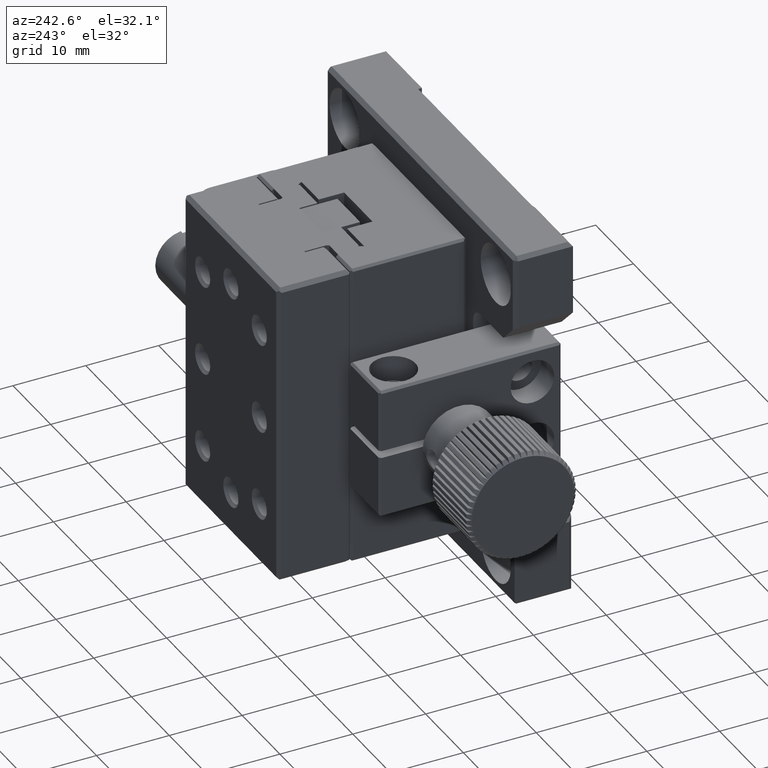
[diagram: clean part render]
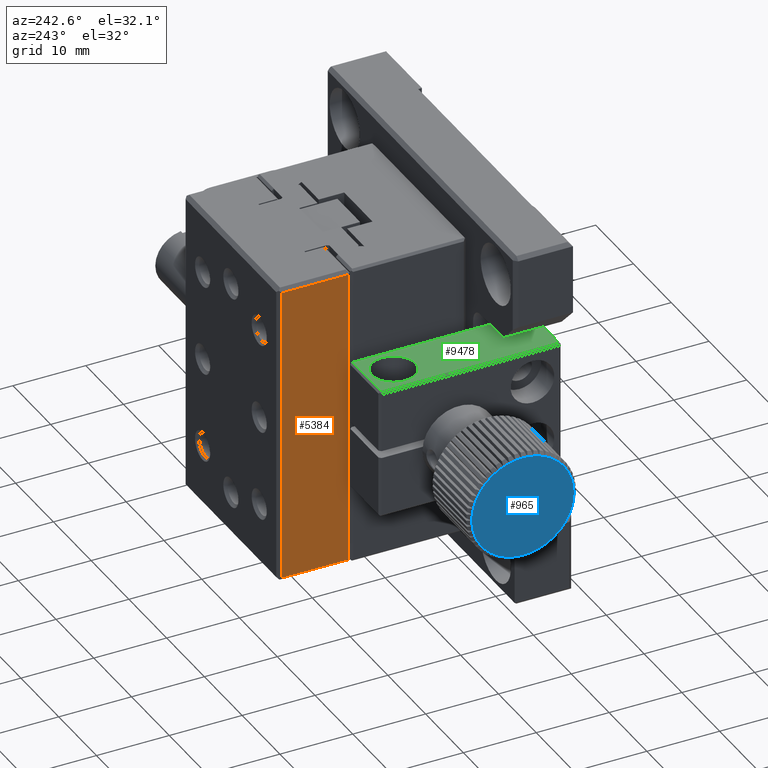
[diagram: same view with three faces highlighted in distinct colors, each labeled with its STEP entity id]
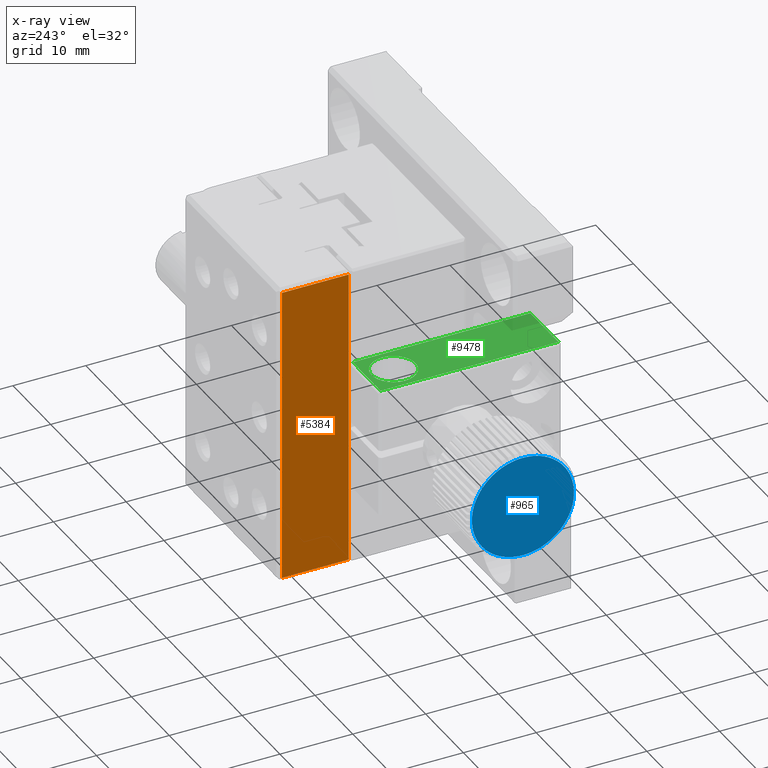
[diagram: x-ray of the same camera — body ghosted, the three highlighted faces saturated]
A machine part, auxiliary view with three faces highlighted in distinct colors.
The next image is the same camera in x-ray (body ghosted, the three faces saturated) — at least one of them is partly hidden behind the body in this view.
Their STEP definitions:

[orange] entity #5384 — the highlighted planar face has unit normal (1, 0, 0).
#1432 = VERTEX_POINT ( 'NONE', #9050 ) ;
#2228 = DIRECTION ( 'NONE',  ( 1.000000000000000000, 0.000000000000000000, 0.000000000000000000 ) ) ;
#3030 = CARTESIAN_POINT ( 'NONE',  ( -12.50000000000000000, 25.50000000000001421, -20.50000000000000000 ) ) ;
#3500 = VERTEX_POINT ( 'NONE', #12371 ) ;
#3543 = ORIENTED_EDGE ( 'NONE', *, *, #6246, .F. ) ;
#4052 = LINE ( 'NONE', #12605, #4885 ) ;
#4685 = CARTESIAN_POINT ( 'NONE',  ( -12.50000000000000000, 25.50000000000001421, 21.00000000000000000 ) ) ;
#4821 = VERTEX_POINT ( 'NONE', #10945 ) ;
#4885 = VECTOR ( 'NONE', #11445, 1000.000000000000000 ) ;
#5384 = ADVANCED_FACE ( 'NONE', ( #5832 ), #13471, .F. ) ;
#5755 = LINE ( 'NONE', #10522, #12150 ) ;
#5832 = FACE_OUTER_BOUND ( 'NONE', #7867, .T. ) ;
#6246 = EDGE_CURVE ( 'NONE', #1432, #3500, #4052, .T. ) ;
#6499 = VERTEX_POINT ( 'NONE', #16099 ) ;
#6830 = DIRECTION ( 'NONE',  ( 0.000000000000000000, -0.000000000000000000, -1.000000000000000000 ) ) ;
#7867 = EDGE_LOOP ( 'NONE', ( #3543, #10748, #9605, #13382 ) ) ;
#8011 = DIRECTION ( 'NONE',  ( -0.000000000000000000, 1.000000000000000000, 0.000000000000000000 ) ) ;
#8059 = CARTESIAN_POINT ( 'NONE',  ( -12.50000000000000000, 25.50000000000001421, 21.00000000000000000 ) ) ;
#8121 = DIRECTION ( 'NONE',  ( 0.000000000000000000, 0.000000000000000000, -1.000000000000000000 ) ) ;
#9050 = CARTESIAN_POINT ( 'NONE',  ( -12.50000000000000000, 25.50000000000001421, 20.50000000000000000 ) ) ;
#9221 = LINE ( 'NONE', #8059, #11644 ) ;
#9605 = ORIENTED_EDGE ( 'NONE', *, *, #13983, .F. ) ;
#10476 = AXIS2_PLACEMENT_3D ( 'NONE', #4685, #2228, #10833 ) ;
#10522 = CARTESIAN_POINT ( 'NONE',  ( -12.50000000000000000, 16.30000000000002913, 21.00000000000000000 ) ) ;
#10748 = ORIENTED_EDGE ( 'NONE', *, *, #15793, .T. ) ;
#10833 = DIRECTION ( 'NONE',  ( 0.000000000000000000, 0.000000000000000000, -1.000000000000000000 ) ) ;
#10945 = CARTESIAN_POINT ( 'NONE',  ( -12.50000000000000000, 25.50000000000001421, -20.49999999999999645 ) ) ;
#11445 = DIRECTION ( 'NONE',  ( 0.000000000000000000, -1.000000000000000000, -0.000000000000000000 ) ) ;
#11644 = VECTOR ( 'NONE', #6830, 1000.000000000000000 ) ;
#12150 = VECTOR ( 'NONE', #8121, 1000.000000000000000 ) ;
#12371 = CARTESIAN_POINT ( 'NONE',  ( -12.50000000000000000, 16.30000000000003268, 20.49999999999999645 ) ) ;
#12605 = CARTESIAN_POINT ( 'NONE',  ( -12.50000000000000000, 25.50000000000001421, 20.50000000000000000 ) ) ;
#13382 = ORIENTED_EDGE ( 'NONE', *, *, #13449, .F. ) ;
#13449 = EDGE_CURVE ( 'NONE', #3500, #6499, #5755, .T. ) ;
#13471 = PLANE ( 'NONE',  #10476 ) ;
#13983 = EDGE_CURVE ( 'NONE', #6499, #4821, #15517, .T. ) ;
#14532 = VECTOR ( 'NONE', #8011, 1000.000000000000000 ) ;
#15517 = LINE ( 'NONE', #3030, #14532 ) ;
#15793 = EDGE_CURVE ( 'NONE', #1432, #4821, #9221, .T. ) ;
#16099 = CARTESIAN_POINT ( 'NONE',  ( -12.50000000000000000, 16.30000000000002913, -20.50000000000000355 ) ) ;

[blue] entity #965 — the highlighted conical surface has half-angle 89.998 deg.
#70 = CARTESIAN_POINT ( 'NONE',  ( -40.50134648184533148, 3.890311651621880973, -6.317980218166069584 ) ) ;
#87 = CARTESIAN_POINT ( 'NONE',  ( -40.50515665095744566, 1.337438180723560910, -4.246522521889152912 ) ) ;
#170 = EDGE_CURVE ( 'NONE', #5962, #2704, #12774, .T. ) ;
#173 = DIRECTION ( 'NONE',  ( 0.001492500475196587061, 0.9999988862205454465, 0.000000000000000000 ) ) ;
#214 = AXIS2_PLACEMENT_3D ( 'NONE', #4521, #9519, #12994 ) ;
#230 = AXIS2_PLACEMENT_3D ( 'NONE', #12860, #14176, #6765 ) ;
#369 = DIRECTION ( 'NONE',  ( -0.001492500475197751711, -0.9999988862205454465, 0.000000000000000000 ) ) ;
#371 = CARTESIAN_POINT ( 'NONE',  ( -40.48756217962660031, 13.12601180389941646, 3.195593069822951993 ) ) ;
#439 = ORIENTED_EDGE ( 'NONE', *, *, #11298, .F. ) ;
#572 = EDGE_CURVE ( 'NONE', #11474, #9454, #13042, .T. ) ;
#617 = VERTEX_POINT ( 'NONE', #9063 ) ;
#723 = AXIS2_PLACEMENT_3D ( 'NONE', #15807, #8315, #13346 ) ;
#734 = ORIENTED_EDGE ( 'NONE', *, *, #15590, .F. ) ;
#743 = AXIS2_PLACEMENT_3D ( 'NONE', #11256, #7542, #5165 ) ;
#746 = CIRCLE ( 'NONE', #5212, 6.998222645712131929 ) ;
#781 = VERTEX_POINT ( 'NONE', #10713 ) ;
#807 = CARTESIAN_POINT ( 'NONE',  ( -40.49685451504885236, 6.900000337192977895, 0.000000000000000000 ) ) ;
#810 = CARTESIAN_POINT ( 'NONE',  ( -40.49685451504885236, 6.900000337192977895, 0.000000000000000000 ) ) ;
#823 = ORIENTED_EDGE ( 'NONE', *, *, #12291, .F. ) ;
#859 = CARTESIAN_POINT ( 'NONE',  ( -40.49900593095340184, 5.458517708482015784, 6.848156204519013635 ) ) ;
#871 = ORIENTED_EDGE ( 'NONE', *, *, #13286, .F. ) ;
#876 = CIRCLE ( 'NONE', #12936, 6.998222645712131929 ) ;
#912 = CARTESIAN_POINT ( 'NONE',  ( -40.49685451504885236, 6.900000337192977895, 0.000000000000000000 ) ) ;
#926 = DIRECTION ( 'NONE',  ( 0.9999988862205456686, -0.001492500475197029632, 0.000000000000000000 ) ) ;
#959 = CARTESIAN_POINT ( 'NONE',  ( -40.49531236874267393, 7.933262714129113213, -6.921523436437328591 ) ) ;
#965 = ADVANCED_FACE ( 'NONE', ( #15304 ), #1521, .F. ) ;
#979 = CIRCLE ( 'NONE', #723, 6.998222645712131929 ) ;
#989 = AXIS2_PLACEMENT_3D ( 'NONE', #8837, #15260, #2625 ) ;
#1003 = CIRCLE ( 'NONE', #8856, 6.998222645712131929 ) ;
#1064 = VERTEX_POINT ( 'NONE', #2469 ) ;
#1071 = EDGE_CURVE ( 'NONE', #6781, #5962, #9886, .T. ) ;
#1075 = CARTESIAN_POINT ( 'NONE',  ( -40.49685451504885236, 6.900000337192977895, 0.000000000000000000 ) ) ;
#1151 = CIRCLE ( 'NONE', #7721, 6.998222645712131929 ) ;
#1153 = EDGE_CURVE ( 'NONE', #15082, #6781, #11209, .T. ) ;
#1225 = CIRCLE ( 'NONE', #10391, 6.998222645712131929 ) ;
#1253 = EDGE_CURVE ( 'NONE', #13409, #16069, #13596, .T. ) ;
#1255 = CIRCLE ( 'NONE', #8840, 6.998222645712131929 ) ;
#1306 = CIRCLE ( 'NONE', #8619, 6.998222645712131929 ) ;
#1347 = VERTEX_POINT ( 'NONE', #15548 ) ;
#1452 = EDGE_CURVE ( 'NONE', #4349, #4376, #5978, .T. ) ;
#1479 = CARTESIAN_POINT ( 'NONE',  ( -40.49685451504885236, 6.900000337192977895, 0.000000000000000000 ) ) ;
#1485 = DIRECTION ( 'NONE',  ( 0.001492500475196587061, 0.9999988862205454465, 0.000000000000000000 ) ) ;
#1488 = ORIENTED_EDGE ( 'NONE', *, *, #8544, .F. ) ;
#1495 = CARTESIAN_POINT ( 'NONE',  ( -40.50515665095744566, 1.337438180723502068, 4.246522521889074753 ) ) ;
#1508 = CIRCLE ( 'NONE', #989, 6.998222645712131929 ) ;
#1519 = VERTEX_POINT ( 'NONE', #5835 ) ;
#1521 = CONICAL_SURFACE ( 'NONE', #10684, 6.998222645725268087, 1.570764043616361461 ) ;
#1527 = AXIS2_PLACEMENT_3D ( 'NONE', #11946, #4405, #10635 ) ;
#1534 = AXIS2_PLACEMENT_3D ( 'NONE', #16214, #2589, #8649 ) ;
#1539 = AXIS2_PLACEMENT_3D ( 'NONE', #9064, #7837, #3918 ) ;
#1554 = EDGE_CURVE ( 'NONE', #6683, #3261, #16212, .T. ) ;
#1600 = DIRECTION ( 'NONE',  ( 0.001492500475196587061, 0.9999988862205454465, 0.000000000000000000 ) ) ;
#1630 = EDGE_CURVE ( 'NONE', #15926, #12399, #10183, .T. ) ;
#1666 = DIRECTION ( 'NONE',  ( 0.9999988862205456686, -0.001492500475197029632, 0.000000000000000000 ) ) ;
#1669 = DIRECTION ( 'NONE',  ( 0.001492500475196587061, 0.9999988862205454465, 0.000000000000000000 ) ) ;
#1671 = CIRCLE ( 'NONE', #4789, 6.998222645712131929 ) ;
#1676 = CARTESIAN_POINT ( 'NONE',  ( -40.48670188090792976, 13.70242553025174992, 1.643784844746260854 ) ) ;
#1765 = CARTESIAN_POINT ( 'NONE',  ( -40.50728102171374445, -0.08592377159287803434, 0.4145791036719497780 ) ) ;
#1768 = CIRCLE ( 'NONE', #2548, 6.998222645712131929 ) ;
#1817 = AXIS2_PLACEMENT_3D ( 'NONE', #14032, #2787, #3942 ) ;
#1833 = CARTESIAN_POINT ( 'NONE',  ( -40.48894242327828863, 12.20122676206636037, -4.568594531142605497 ) ) ;
#1883 = CARTESIAN_POINT ( 'NONE',  ( -40.49685451504885236, 6.900000337192977895, 0.000000000000000000 ) ) ;
#1957 = CARTESIAN_POINT ( 'NONE',  ( -40.49685451504885236, 6.900000337192977895, 0.000000000000000000 ) ) ;
#1992 = ORIENTED_EDGE ( 'NONE', *, *, #11531, .F. ) ;
#2147 = EDGE_CURVE ( 'NONE', #8362, #6683, #8881, .T. ) ;
#2158 = CARTESIAN_POINT ( 'NONE',  ( -40.49685451504885236, 6.900000337192977895, 0.000000000000000000 ) ) ;
#2160 = ORIENTED_EDGE ( 'NONE', *, *, #3355, .F. ) ;
#2171 = DIRECTION ( 'NONE',  ( 0.9999988862205456686, -0.001492500475197029632, 0.000000000000000000 ) ) ;
#2174 = EDGE_CURVE ( 'NONE', #9454, #16172, #5218, .T. ) ;
#2250 = DIRECTION ( 'NONE',  ( 0.001492500475196587061, 0.9999988862205454465, 0.000000000000000000 ) ) ;
#2387 = CARTESIAN_POINT ( 'NONE',  ( -40.50684398046652035, 0.2069007652927539742, -2.043878306105291198 ) ) ;
#2436 = ORIENTED_EDGE ( 'NONE', *, *, #2909, .F. ) ;
#2466 = CARTESIAN_POINT ( 'NONE',  ( -40.49654499936625029, 7.107380732052419603, -6.995149281822806486 ) ) ;
#2469 = CARTESIAN_POINT ( 'NONE',  ( -40.48640966442459899, 13.89821518842851056, 0.000000000000000000 ) ) ;
#2485 = DIRECTION ( 'NONE',  ( 0.001492500475196587061, 0.9999988862205454465, 0.000000000000000000 ) ) ;
#2493 = CARTESIAN_POINT ( 'NONE',  ( -40.48670188090792976, 13.70242553025177301, -1.643784844746166929 ) ) ;
#2504 = CARTESIAN_POINT ( 'NONE',  ( -40.49685451504885236, 6.900000337192977895, 0.000000000000000000 ) ) ;
#2548 = AXIS2_PLACEMENT_3D ( 'NONE', #3063, #4369, #11844 ) ;
#2549 = CIRCLE ( 'NONE', #12242, 6.998222645712131929 ) ;
#2550 = VERTEX_POINT ( 'NONE', #7824 ) ;
#2572 = VERTEX_POINT ( 'NONE', #9139 ) ;
#2577 = CIRCLE ( 'NONE', #13309, 6.998222645712131929 ) ;
#2586 = CARTESIAN_POINT ( 'NONE',  ( -40.49685451504885236, 6.900000337192977895, 0.000000000000000000 ) ) ;
#2588 = VERTEX_POINT ( 'NONE', #5447 ) ;
#2589 = DIRECTION ( 'NONE',  ( 0.9999988862205456686, -0.001492500475197029632, 0.000000000000000000 ) ) ;
#2608 = CIRCLE ( 'NONE', #4683, 6.998222645712131929 ) ;
#2625 = DIRECTION ( 'NONE',  ( 0.001492500475196587061, 0.9999988862205454465, 0.000000000000000000 ) ) ;
#2655 = CARTESIAN_POINT ( 'NONE',  ( -40.50019968583191599, 4.658683089487007045, 6.629600742422300463 ) ) ;
#2657 = VERTEX_POINT ( 'NONE', #8137 ) ;
#2681 = CARTESIAN_POINT ( 'NONE',  ( -40.48980441842409306, 11.62367640274931979, -5.163521562149798960 ) ) ;
#2704 = VERTEX_POINT ( 'NONE', #2655 ) ;
#2787 = DIRECTION ( 'NONE',  ( 0.9999988862205456686, -0.001492500475197029632, 0.000000000000000000 ) ) ;
#2805 = AXIS2_PLACEMENT_3D ( 'NONE', #810, #10808, #10573 ) ;
#2834 = AXIS2_PLACEMENT_3D ( 'NONE', #6151, #8696, #15109 ) ;
#2881 = CIRCLE ( 'NONE', #12044, 6.998222645712131929 ) ;
#2903 = CARTESIAN_POINT ( 'NONE',  ( -40.49685451504885236, 6.900000337192977895, 0.000000000000000000 ) ) ;
#2909 = EDGE_CURVE ( 'NONE', #10744, #781, #2881, .T. ) ;
#2928 = VERTEX_POINT ( 'NONE', #1495 ) ;
#2985 = CARTESIAN_POINT ( 'NONE',  ( -40.49685451504886657, 6.900000337192977007, 1.566849511306091648E-37 ) ) ;
#3033 = DIRECTION ( 'NONE',  ( 0.9999988862205456686, -0.001492500475197029632, 0.000000000000000000 ) ) ;
#3063 = CARTESIAN_POINT ( 'NONE',  ( -40.49685451504885236, 6.900000337192977895, 0.000000000000000000 ) ) ;
#3115 = CARTESIAN_POINT ( 'NONE',  ( -40.49685451504885236, 6.900000337192977895, 0.000000000000000000 ) ) ;
#3193 = DIRECTION ( 'NONE',  ( 0.001492500475196587061, 0.9999988862205454465, 0.000000000000000000 ) ) ;
#3261 = VERTEX_POINT ( 'NONE', #6477 ) ;
#3283 = CARTESIAN_POINT ( 'NONE',  ( -40.49685451504885236, 6.900000337192977895, 0.000000000000000000 ) ) ;
#3306 = ORIENTED_EDGE ( 'NONE', *, *, #9947, .F. ) ;
#3324 = AXIS2_PLACEMENT_3D ( 'NONE', #3404, #2171, #2250 ) ;
#3327 = ORIENTED_EDGE ( 'NONE', *, *, #2174, .F. ) ;
#3355 = EDGE_CURVE ( 'NONE', #15947, #2928, #9857, .T. ) ;
#3404 = CARTESIAN_POINT ( 'NONE',  ( -40.49685451504885236, 6.900000337192977895, 0.000000000000000000 ) ) ;
#3417 = VERTEX_POINT ( 'NONE', #14512 ) ;
#3479 = ORIENTED_EDGE ( 'NONE', *, *, #6929, .F. ) ;
#3509 = AXIS2_PLACEMENT_3D ( 'NONE', #2504, #9973, #15243 ) ;
#3513 = VERTEX_POINT ( 'NONE', #11133 ) ;
#3623 = CIRCLE ( 'NONE', #1539, 6.998222645712131929 ) ;
#3628 = CARTESIAN_POINT ( 'NONE',  ( -40.49685451504885236, 6.900000337192977895, 0.000000000000000000 ) ) ;
#3645 = ORIENTED_EDGE ( 'NONE', *, *, #15218, .F. ) ;
#3715 = DIRECTION ( 'NONE',  ( 0.9999988862205456686, -0.001492500475197029632, 0.000000000000000000 ) ) ;
#3836 = EDGE_CURVE ( 'NONE', #11424, #6620, #8581, .T. ) ;
#3860 = CIRCLE ( 'NONE', #4896, 6.998222645712131929 ) ;
#3876 = AXIS2_PLACEMENT_3D ( 'NONE', #1075, #14608, #13708 ) ;
#3909 = EDGE_CURVE ( 'NONE', #6620, #15082, #10421, .T. ) ;
#3918 = DIRECTION ( 'NONE',  ( 0.001492500475196587061, 0.9999988862205454465, 0.000000000000000000 ) ) ;
#3930 = CIRCLE ( 'NONE', #9384, 6.998222645712131929 ) ;
#3942 = DIRECTION ( 'NONE',  ( 0.001492500475196587061, 0.9999988862205454465, 0.000000000000000000 ) ) ;
#4031 = CIRCLE ( 'NONE', #6113, 6.998222645712131929 ) ;
#4092 = DIRECTION ( 'NONE',  ( 0.001492500475196587061, 0.9999988862205454465, 0.000000000000000000 ) ) ;
#4094 = DIRECTION ( 'NONE',  ( 0.001492500475196587061, 0.9999988862205454465, 0.000000000000000000 ) ) ;
#4111 = AXIS2_PLACEMENT_3D ( 'NONE', #12670, #13821, #7398 ) ;
#4114 = CIRCLE ( 'NONE', #7243, 6.998222645712131929 ) ;
#4185 = DIRECTION ( 'NONE',  ( 0.9999988862205456686, -0.001492500475197029632, 0.000000000000000000 ) ) ;
#4212 = VERTEX_POINT ( 'NONE', #1833 ) ;
#4265 = CARTESIAN_POINT ( 'NONE',  ( -40.49654499936625029, 7.107380732052322792, 6.995149281822808263 ) ) ;
#4349 = VERTEX_POINT ( 'NONE', #6323 ) ;
#4369 = DIRECTION ( 'NONE',  ( 0.9999988862205456686, -0.001492500475197029632, 0.000000000000000000 ) ) ;
#4376 = VERTEX_POINT ( 'NONE', #2466 ) ;
#4405 = DIRECTION ( 'NONE',  ( 0.9999988862205456686, -0.001492500475197029632, 0.000000000000000000 ) ) ;
#4430 = ORIENTED_EDGE ( 'NONE', *, *, #170, .F. ) ;
#4431 = AXIS2_PLACEMENT_3D ( 'NONE', #15965, #9542, #8232 ) ;
#4461 = ORIENTED_EDGE ( 'NONE', *, *, #8882, .F. ) ;
#4473 = EDGE_CURVE ( 'NONE', #9922, #11875, #15435, .T. ) ;
#4484 = CARTESIAN_POINT ( 'NONE',  ( -40.49685451504885236, 6.900000337192977895, 0.000000000000000000 ) ) ;
#4498 = VERTEX_POINT ( 'NONE', #6628 ) ;
#4499 = DIRECTION ( 'NONE',  ( 0.001492500475196587061, 0.9999988862205454465, 0.000000000000000000 ) ) ;
#4521 = CARTESIAN_POINT ( 'NONE',  ( -40.49685451504885236, 6.900000337192977895, 0.000000000000000000 ) ) ;
#4563 = DIRECTION ( 'NONE',  ( 0.001492500475196587061, 0.9999988862205454465, 0.000000000000000000 ) ) ;
#4623 = CARTESIAN_POINT ( 'NONE',  ( -40.49181182260877421, 10.27868390040406332, -6.128588104114872870 ) ) ;
#4628 = DIRECTION ( 'NONE',  ( 0.001492500475196587061, 0.9999988862205454465, 0.000000000000000000 ) ) ;
#4660 = CIRCLE ( 'NONE', #5975, 6.998222645712131929 ) ;
#4669 = ORIENTED_EDGE ( 'NONE', *, *, #1071, .F. ) ;
#4683 = AXIS2_PLACEMENT_3D ( 'NONE', #15621, #14230, #1669 ) ;
#4777 = VERTEX_POINT ( 'NONE', #11866 ) ;
#4789 = AXIS2_PLACEMENT_3D ( 'NONE', #2158, #12937, #7139 ) ;
#4794 = ORIENTED_EDGE ( 'NONE', *, *, #1253, .F. ) ;
#4846 = CARTESIAN_POINT ( 'NONE',  ( -40.50243022049143349, 3.164189645583117549, -5.917669100830192264 ) ) ;
#4880 = CARTESIAN_POINT ( 'NONE',  ( -40.48819149655741256, 12.70435952280982050, -3.909534447400887291 ) ) ;
#4896 = AXIS2_PLACEMENT_3D ( 'NONE', #2903, #1666, #9206 ) ;
#4902 = ORIENTED_EDGE ( 'NONE', *, *, #3909, .F. ) ;
#4920 = CARTESIAN_POINT ( 'NONE',  ( -40.49292905209320281, 9.530122503848856397, -6.485180196275513786 ) ) ;
#5011 = DIRECTION ( 'NONE',  ( 0.9999988862205456686, -0.001492500475197029632, 0.000000000000000000 ) ) ;
#5071 = DIRECTION ( 'NONE',  ( 0.9999988862205456686, -0.001492500475197029632, 0.000000000000000000 ) ) ;
#5085 = ORIENTED_EDGE ( 'NONE', *, *, #5276, .F. ) ;
#5104 = CARTESIAN_POINT ( 'NONE',  ( -40.50343568845523379, 2.490510232656450995, 5.434286881009243508 ) ) ;
#5113 = DIRECTION ( 'NONE',  ( 0.001492500475196587061, 0.9999988862205454465, 0.000000000000000000 ) ) ;
#5151 = CIRCLE ( 'NONE', #8552, 6.998222645712131929 ) ;
#5159 = CARTESIAN_POINT ( 'NONE',  ( -40.48756217962660031, 13.12601180389946087, -3.195593069822866283 ) ) ;
#5164 = CIRCLE ( 'NONE', #4111, 6.998222645712131929 ) ;
#5165 = DIRECTION ( 'NONE',  ( 0.001492500475196587061, 0.9999988862205454465, 0.000000000000000000 ) ) ;
#5212 = AXIS2_PLACEMENT_3D ( 'NONE', #10424, #10586, #1485 ) ;
#5218 = CIRCLE ( 'NONE', #4431, 6.998222645712131929 ) ;
#5222 = AXIS2_PLACEMENT_3D ( 'NONE', #10258, #10333, #4094 ) ;
#5276 = EDGE_CURVE ( 'NONE', #617, #4349, #2608, .T. ) ;
#5277 = VERTEX_POINT ( 'NONE', #13156 ) ;
#5353 = EDGE_CURVE ( 'NONE', #5277, #6206, #3930, .T. ) ;
#5421 = VERTEX_POINT ( 'NONE', #7306 ) ;
#5441 = AXIS2_PLACEMENT_3D ( 'NONE', #9545, #11799, #10554 ) ;
#5447 = CARTESIAN_POINT ( 'NONE',  ( -40.48648297582828803, 13.84909539031091974, -0.8277019831219895041 ) ) ;
#5458 = CIRCLE ( 'NONE', #7540, 6.998222645712131929 ) ;
#5491 = DIRECTION ( 'NONE',  ( 0.001492500475196587061, 0.9999988862205454465, 0.000000000000000000 ) ) ;
#5663 = ORIENTED_EDGE ( 'NONE', *, *, #13160, .F. ) ;
#5677 = ORIENTED_EDGE ( 'NONE', *, *, #9194, .F. ) ;
#5835 = CARTESIAN_POINT ( 'NONE',  ( -40.48706330671607390, 13.46026453158199665, -2.436792570370926114 ) ) ;
#5846 = EDGE_CURVE ( 'NONE', #7752, #5421, #3623, .T. ) ;
#5879 = ORIENTED_EDGE ( 'NONE', *, *, #6117, .F. ) ;
#5898 = ORIENTED_EDGE ( 'NONE', *, *, #7269, .F. ) ;
#5962 = VERTEX_POINT ( 'NONE', #859 ) ;
#5975 = AXIS2_PLACEMENT_3D ( 'NONE', #15018, #12558, #9916 ) ;
#5978 = CIRCLE ( 'NONE', #7805, 6.998222645712131929 ) ;
#5992 = ORIENTED_EDGE ( 'NONE', *, *, #1630, .F. ) ;
#6004 = DIRECTION ( 'NONE',  ( 0.001492500475196587061, 0.9999988862205454465, 0.000000000000000000 ) ) ;
#6014 = CARTESIAN_POINT ( 'NONE',  ( -40.50434877117051258, 1.878730395076043447, 4.874619185482730543 ) ) ;
#6079 = DIRECTION ( 'NONE',  ( 0.001492500475196587061, 0.9999988862205454465, 0.000000000000000000 ) ) ;
#6113 = AXIS2_PLACEMENT_3D ( 'NONE', #12393, #14702, #13385 ) ;
#6115 = EDGE_CURVE ( 'NONE', #12893, #3513, #8827, .T. ) ;
#6117 = EDGE_CURVE ( 'NONE', #16172, #15592, #9085, .T. ) ;
#6128 = CIRCLE ( 'NONE', #3509, 6.998222645712131929 ) ;
#6151 = CARTESIAN_POINT ( 'NONE',  ( -40.49685451504885236, 6.900000337192977895, 0.000000000000000000 ) ) ;
#6196 = EDGE_CURVE ( 'NONE', #1347, #14927, #13830, .T. ) ;
#6206 = VERTEX_POINT ( 'NONE', #371 ) ;
#6217 = EDGE_CURVE ( 'NONE', #3261, #7853, #12782, .T. ) ;
#6280 = AXIS2_PLACEMENT_3D ( 'NONE', #3115, #11641, #6866 ) ;
#6306 = DIRECTION ( 'NONE',  ( 0.001492500475196587061, 0.9999988862205454465, 0.000000000000000000 ) ) ;
#6323 = CARTESIAN_POINT ( 'NONE',  ( -40.49778197491156106, 6.278587583815330220, -6.970578564847825120 ) ) ;
#6339 = EDGE_CURVE ( 'NONE', #7565, #13780, #1768, .T. ) ;
#6361 = EDGE_CURVE ( 'NONE', #16069, #15947, #7245, .T. ) ;
#6408 = CARTESIAN_POINT ( 'NONE',  ( -40.49410138647279922, 8.744639957372593031, 6.750734574170783375 ) ) ;
#6411 = AXIS2_PLACEMENT_3D ( 'NONE', #9780, #926, #13565 ) ;
#6477 = CARTESIAN_POINT ( 'NONE',  ( -40.50343568845524089, 2.490510232656527378, -5.434286881009304793 ) ) ;
#6548 = DIRECTION ( 'NONE',  ( 0.001492500475196587061, 0.9999988862205454465, 0.000000000000000000 ) ) ;
#6573 = CARTESIAN_POINT ( 'NONE',  ( -40.49531236874267393, 7.933262714129016402, 6.921523436437341914 ) ) ;
#6596 = DIRECTION ( 'NONE',  ( 0.9999988862205456686, -0.001492500475197029632, 0.000000000000000000 ) ) ;
#6620 = VERTEX_POINT ( 'NONE', #6573 ) ;
#6628 = CARTESIAN_POINT ( 'NONE',  ( -40.50584798695474120, 0.8742321457611678115, 3.558813990580263820 ) ) ;
#6683 = VERTEX_POINT ( 'NONE', #13897 ) ;
#6725 = AXIS2_PLACEMENT_3D ( 'NONE', #9869, #8647, #13668 ) ;
#6765 = DIRECTION ( 'NONE',  ( 0.001492500475196587061, 0.9999988862205454465, 0.000000000000000000 ) ) ;
#6781 = VERTEX_POINT ( 'NONE', #10754 ) ;
#6863 = DIRECTION ( 'NONE',  ( 0.9999988862205456686, -0.001492500475197029632, 0.000000000000000000 ) ) ;
#6866 = DIRECTION ( 'NONE',  ( 0.001492500475196587061, 0.9999988862205454465, 0.000000000000000000 ) ) ;
#6929 = EDGE_CURVE ( 'NONE', #4212, #7565, #5458, .T. ) ;
#7017 = DIRECTION ( 'NONE',  ( 0.9999988862205456686, -0.001492500475197029632, 0.000000000000000000 ) ) ;
#7051 = EDGE_CURVE ( 'NONE', #5421, #2550, #4660, .T. ) ;
#7114 = DIRECTION ( 'NONE',  ( 0.001492500475196587061, 0.9999988862205454465, 0.000000000000000000 ) ) ;
#7139 = DIRECTION ( 'NONE',  ( 0.001492500475196587061, 0.9999988862205454465, 0.000000000000000000 ) ) ;
#7142 = CARTESIAN_POINT ( 'NONE',  ( -40.50713465641534583, 0.01214328955998454640, -1.237917529169091591 ) ) ;
#7167 = DIRECTION ( 'NONE',  ( 0.9999988862205456686, -0.001492500475197029632, 0.000000000000000000 ) ) ;
#7242 = EDGE_CURVE ( 'NONE', #14927, #8362, #5151, .T. ) ;
#7243 = AXIS2_PLACEMENT_3D ( 'NONE', #10878, #7017, #14583 ) ;
#7245 = CIRCLE ( 'NONE', #214, 6.998222645712131929 ) ;
#7269 = EDGE_CURVE ( 'NONE', #2928, #4498, #1225, .T. ) ;
#7288 = CIRCLE ( 'NONE', #11497, 6.998222645712131929 ) ;
#7306 = CARTESIAN_POINT ( 'NONE',  ( -40.48894242327828863, 12.20122676206629642, 4.568594531142681880 ) ) ;
#7398 = DIRECTION ( 'NONE',  ( 0.001492500475196587061, 0.9999988862205454465, 0.000000000000000000 ) ) ;
#7434 = EDGE_CURVE ( 'NONE', #2657, #7531, #4114, .T. ) ;
#7467 = CARTESIAN_POINT ( 'NONE',  ( -40.49685451504885236, 6.900000337192977895, 0.000000000000000000 ) ) ;
#7531 = VERTEX_POINT ( 'NONE', #1676 ) ;
#7540 = AXIS2_PLACEMENT_3D ( 'NONE', #3283, #9670, #7114 ) ;
#7542 = DIRECTION ( 'NONE',  ( 0.9999988862205456686, -0.001492500475197029632, 0.000000000000000000 ) ) ;
#7565 = VERTEX_POINT ( 'NONE', #4880 ) ;
#7707 = CIRCLE ( 'NONE', #6411, 6.998222645712131929 ) ;
#7715 = DIRECTION ( 'NONE',  ( 0.9999988862205456686, -0.001492500475197029632, 0.000000000000000000 ) ) ;
#7721 = AXIS2_PLACEMENT_3D ( 'NONE', #4484, #14186, #7917 ) ;
#7752 = VERTEX_POINT ( 'NONE', #8373 ) ;
#7755 = CARTESIAN_POINT ( 'NONE',  ( -40.49685451504885236, 6.900000337192977895, 0.000000000000000000 ) ) ;
#7771 = ORIENTED_EDGE ( 'NONE', *, *, #7051, .F. ) ;
#7805 = AXIS2_PLACEMENT_3D ( 'NONE', #15475, #6596, #11541 ) ;
#7818 = DIRECTION ( 'NONE',  ( 0.9999988862205456686, -0.001492500475197029632, 0.000000000000000000 ) ) ;
#7824 = CARTESIAN_POINT ( 'NONE',  ( -40.48980441842409306, 11.62367640274924518, 5.163521562149863797 ) ) ;
#7837 = DIRECTION ( 'NONE',  ( 0.9999988862205456686, -0.001492500475197029632, 0.000000000000000000 ) ) ;
#7853 = VERTEX_POINT ( 'NONE', #4846 ) ;
#7917 = DIRECTION ( 'NONE',  ( 0.001492500475196587061, 0.9999988862205454465, 0.000000000000000000 ) ) ;
#8049 = CIRCLE ( 'NONE', #3876, 6.998222645712131929 ) ;
#8137 = CARTESIAN_POINT ( 'NONE',  ( -40.48648297582828803, 13.84909539031091086, 0.8277019831220858714 ) ) ;
#8196 = EDGE_CURVE ( 'NONE', #2588, #1064, #8049, .T. ) ;
#8201 = CARTESIAN_POINT ( 'NONE',  ( -40.49685451504885236, 6.900000337192977895, 0.000000000000000000 ) ) ;
#8232 = DIRECTION ( 'NONE',  ( 0.001492500475196587061, 0.9999988862205454465, 0.000000000000000000 ) ) ;
#8254 = ORIENTED_EDGE ( 'NONE', *, *, #8365, .F. ) ;
#8285 = AXIS2_PLACEMENT_3D ( 'NONE', #12678, #7818, #1600 ) ;
#8315 = DIRECTION ( 'NONE',  ( 0.9999988862205456686, -0.001492500475197029632, 0.000000000000000000 ) ) ;
#8362 = VERTEX_POINT ( 'NONE', #87 ) ;
#8365 = EDGE_CURVE ( 'NONE', #4376, #12741, #1255, .T. ) ;
#8373 = CARTESIAN_POINT ( 'NONE',  ( -40.48819149655741256, 12.70435952280976188, 3.909534447400971224 ) ) ;
#8379 = CARTESIAN_POINT ( 'NONE',  ( -40.50713465641534583, 0.01214328955996546444, 1.237917529168995889 ) ) ;
#8441 = DIRECTION ( 'NONE',  ( 0.9999988862205456686, -0.001492500475197029632, 0.000000000000000000 ) ) ;
#8463 = ORIENTED_EDGE ( 'NONE', *, *, #9265, .F. ) ;
#8534 = DIRECTION ( 'NONE',  ( 0.9999988862205456686, -0.001492500475197029632, 0.000000000000000000 ) ) ;
#8544 = EDGE_CURVE ( 'NONE', #15592, #4212, #1003, .T. ) ;
#8552 = AXIS2_PLACEMENT_3D ( 'NONE', #13035, #11810, #5491 ) ;
#8581 = CIRCLE ( 'NONE', #1527, 6.998222645712131929 ) ;
#8599 = CIRCLE ( 'NONE', #15418, 6.998222645712131929 ) ;
#8619 = AXIS2_PLACEMENT_3D ( 'NONE', #13065, #10595, #10672 ) ;
#8647 = DIRECTION ( 'NONE',  ( 0.9999988862205456686, -0.001492500475197029632, 0.000000000000000000 ) ) ;
#8649 = DIRECTION ( 'NONE',  ( 0.001492500475196587061, 0.9999988862205454465, 0.000000000000000000 ) ) ;
#8671 = ORIENTED_EDGE ( 'NONE', *, *, #8196, .F. ) ;
#8687 = EDGE_CURVE ( 'NONE', #6206, #7752, #8599, .T. ) ;
#8696 = DIRECTION ( 'NONE',  ( 0.9999988862205456686, -0.001492500475197029632, 0.000000000000000000 ) ) ;
#8743 = ORIENTED_EDGE ( 'NONE', *, *, #10564, .F. ) ;
#8770 = CARTESIAN_POINT ( 'NONE',  ( -40.49076538147250659, 10.97981598589741914, 5.685964069003319743 ) ) ;
#8785 = DIRECTION ( 'NONE',  ( 0.9999988862205456686, -0.001492500475197029632, 0.000000000000000000 ) ) ;
#8790 = CARTESIAN_POINT ( 'NONE',  ( -40.49685451504885236, 6.900000337192977895, 0.000000000000000000 ) ) ;
#8827 = CIRCLE ( 'NONE', #3324, 6.998222645712131929 ) ;
#8837 = CARTESIAN_POINT ( 'NONE',  ( -40.49685451504885236, 6.900000337192977895, 0.000000000000000000 ) ) ;
#8840 = AXIS2_PLACEMENT_3D ( 'NONE', #15343, #5071, #173 ) ;
#8856 = AXIS2_PLACEMENT_3D ( 'NONE', #1957, #4185, #3193 ) ;
#8860 = CARTESIAN_POINT ( 'NONE',  ( -40.50684398046652035, 0.2069007652927244700, 2.043878306105195719 ) ) ;
#8881 = CIRCLE ( 'NONE', #1817, 6.998222645712131929 ) ;
#8882 = EDGE_CURVE ( 'NONE', #2550, #13782, #12812, .T. ) ;
#8987 = ORIENTED_EDGE ( 'NONE', *, *, #8687, .F. ) ;
#9063 = CARTESIAN_POINT ( 'NONE',  ( -40.49900593095339474, 5.458517708482109043, -6.848156204519034063 ) ) ;
#9064 = CARTESIAN_POINT ( 'NONE',  ( -40.49685451504885236, 6.900000337192977895, 0.000000000000000000 ) ) ;
#9085 = CIRCLE ( 'NONE', #6725, 6.998222645712131929 ) ;
#9120 = AXIS2_PLACEMENT_3D ( 'NONE', #7467, #5011, #10018 ) ;
#9139 = CARTESIAN_POINT ( 'NONE',  ( -40.50134648184533148, 3.890311651621790823, 6.317980218166025175 ) ) ;
#9194 = EDGE_CURVE ( 'NONE', #11875, #15902, #13831, .T. ) ;
#9206 = DIRECTION ( 'NONE',  ( 0.001492500475196587061, 0.9999988862205454465, 0.000000000000000000 ) ) ;
#9265 = EDGE_CURVE ( 'NONE', #4777, #11474, #2549, .T. ) ;
#9384 = AXIS2_PLACEMENT_3D ( 'NONE', #912, #8441, #6079 ) ;
#9454 = VERTEX_POINT ( 'NONE', #4623 ) ;
#9482 = EDGE_CURVE ( 'NONE', #2704, #2572, #979, .T. ) ;
#9519 = DIRECTION ( 'NONE',  ( 0.9999988862205456686, -0.001492500475197029632, 0.000000000000000000 ) ) ;
#9542 = DIRECTION ( 'NONE',  ( 0.9999988862205456686, -0.001492500475197029632, 0.000000000000000000 ) ) ;
#9545 = CARTESIAN_POINT ( 'NONE',  ( -40.49685451504885236, 6.900000337192977895, 0.000000000000000000 ) ) ;
#9592 = DIRECTION ( 'NONE',  ( 0.001492500475196587061, 0.9999988862205454465, 0.000000000000000000 ) ) ;
#9670 = DIRECTION ( 'NONE',  ( 0.9999988862205456686, -0.001492500475197029632, 0.000000000000000000 ) ) ;
#9746 = ORIENTED_EDGE ( 'NONE', *, *, #6361, .F. ) ;
#9780 = CARTESIAN_POINT ( 'NONE',  ( -40.49685451504885236, 6.900000337192977895, 0.000000000000000000 ) ) ;
#9857 = CIRCLE ( 'NONE', #2805, 6.998222645712131929 ) ;
#9869 = CARTESIAN_POINT ( 'NONE',  ( -40.49685451504885236, 6.900000337192977895, 0.000000000000000000 ) ) ;
#9883 = CARTESIAN_POINT ( 'NONE',  ( -40.49685451504885236, 6.900000337192977895, 0.000000000000000000 ) ) ;
#9886 = CIRCLE ( 'NONE', #2834, 6.998222645712131929 ) ;
#9909 = AXIS2_PLACEMENT_3D ( 'NONE', #10414, #3033, #4499 ) ;
#9916 = DIRECTION ( 'NONE',  ( 0.001492500475196587061, 0.9999988862205454465, 0.000000000000000000 ) ) ;
#9922 = VERTEX_POINT ( 'NONE', #13660 ) ;
#9947 = EDGE_CURVE ( 'NONE', #14037, #11424, #5164, .T. ) ;
#9973 = DIRECTION ( 'NONE',  ( 0.9999988862205456686, -0.001492500475197029632, 0.000000000000000000 ) ) ;
#9983 = ORIENTED_EDGE ( 'NONE', *, *, #3836, .F. ) ;
#10013 = CARTESIAN_POINT ( 'NONE',  ( -40.49685451504885236, 6.900000337192977895, 0.000000000000000000 ) ) ;
#10018 = DIRECTION ( 'NONE',  ( 0.001492500475196587061, 0.9999988862205454465, 0.000000000000000000 ) ) ;
#10034 = EDGE_CURVE ( 'NONE', #13782, #3417, #3860, .T. ) ;
#10089 = ORIENTED_EDGE ( 'NONE', *, *, #10034, .F. ) ;
#10183 = CIRCLE ( 'NONE', #12278, 6.998222645712131929 ) ;
#10257 = ORIENTED_EDGE ( 'NONE', *, *, #5846, .F. ) ;
#10258 = CARTESIAN_POINT ( 'NONE',  ( -40.49685451504885236, 6.900000337192977895, 0.000000000000000000 ) ) ;
#10333 = DIRECTION ( 'NONE',  ( 0.9999988862205456686, -0.001492500475197029632, 0.000000000000000000 ) ) ;
#10348 = CARTESIAN_POINT ( 'NONE',  ( -40.49685451504885236, 6.900000337192977895, 0.000000000000000000 ) ) ;
#10375 = EDGE_CURVE ( 'NONE', #15902, #10744, #1508, .T. ) ;
#10391 = AXIS2_PLACEMENT_3D ( 'NONE', #1883, #6863, #11885 ) ;
#10414 = CARTESIAN_POINT ( 'NONE',  ( -40.49685451504885236, 6.900000337192977895, 0.000000000000000000 ) ) ;
#10421 = CIRCLE ( 'NONE', #5441, 6.998222645712131929 ) ;
#10424 = CARTESIAN_POINT ( 'NONE',  ( -40.49685451504885236, 6.900000337192977895, 0.000000000000000000 ) ) ;
#10554 = DIRECTION ( 'NONE',  ( 0.001492500475196587061, 0.9999988862205454465, 0.000000000000000000 ) ) ;
#10564 = EDGE_CURVE ( 'NONE', #4498, #9922, #2577, .T. ) ;
#10573 = DIRECTION ( 'NONE',  ( 0.001492500475196587061, 0.9999988862205454465, 0.000000000000000000 ) ) ;
#10586 = DIRECTION ( 'NONE',  ( 0.9999988862205456686, -0.001492500475197029632, 0.000000000000000000 ) ) ;
#10595 = DIRECTION ( 'NONE',  ( 0.9999988862205456686, -0.001492500475197029632, 0.000000000000000000 ) ) ;
#10635 = DIRECTION ( 'NONE',  ( 0.001492500475196587061, 0.9999988862205454465, 0.000000000000000000 ) ) ;
#10672 = DIRECTION ( 'NONE',  ( 0.001492500475196587061, 0.9999988862205454465, 0.000000000000000000 ) ) ;
#10684 = AXIS2_PLACEMENT_3D ( 'NONE', #2985, #12754, #369 ) ;
#10713 = CARTESIAN_POINT ( 'NONE',  ( -40.50728102171374445, -0.08592377159287456490, -0.4145791036720473111 ) ) ;
#10744 = VERTEX_POINT ( 'NONE', #1765 ) ;
#10754 = CARTESIAN_POINT ( 'NONE',  ( -40.49778197491156106, 6.278587583815234296, 6.970578564847816239 ) ) ;
#10808 = DIRECTION ( 'NONE',  ( 0.9999988862205456686, -0.001492500475197029632, 0.000000000000000000 ) ) ;
#10878 = CARTESIAN_POINT ( 'NONE',  ( -40.49685451504885236, 6.900000337192977895, 0.000000000000000000 ) ) ;
#11006 = DIRECTION ( 'NONE',  ( 0.9999988862205456686, -0.001492500475197029632, 0.000000000000000000 ) ) ;
#11063 = VERTEX_POINT ( 'NONE', #2493 ) ;
#11069 = ORIENTED_EDGE ( 'NONE', *, *, #7242, .F. ) ;
#11133 = CARTESIAN_POINT ( 'NONE',  ( -40.50019968583191599, 4.658683089487102080, -6.629600742422331550 ) ) ;
#11209 = CIRCLE ( 'NONE', #743, 6.998222645712131929 ) ;
#11256 = CARTESIAN_POINT ( 'NONE',  ( -40.49685451504885236, 6.900000337192977895, 0.000000000000000000 ) ) ;
#11263 = DIRECTION ( 'NONE',  ( 0.001492500475196587061, 0.9999988862205454465, 0.000000000000000000 ) ) ;
#11298 = EDGE_CURVE ( 'NONE', #12399, #1347, #7288, .T. ) ;
#11368 = ORIENTED_EDGE ( 'NONE', *, *, #11964, .F. ) ;
#11424 = VERTEX_POINT ( 'NONE', #6408 ) ;
#11474 = VERTEX_POINT ( 'NONE', #4920 ) ;
#11497 = AXIS2_PLACEMENT_3D ( 'NONE', #8201, #13227, #9592 ) ;
#11531 = EDGE_CURVE ( 'NONE', #2572, #13409, #746, .T. ) ;
#11533 = ORIENTED_EDGE ( 'NONE', *, *, #6196, .F. ) ;
#11541 = DIRECTION ( 'NONE',  ( 0.001492500475196587061, 0.9999988862205454465, 0.000000000000000000 ) ) ;
#11641 = DIRECTION ( 'NONE',  ( 0.9999988862205456686, -0.001492500475197029632, 0.000000000000000000 ) ) ;
#11720 = AXIS2_PLACEMENT_3D ( 'NONE', #16243, #15010, #6306 ) ;
#11799 = DIRECTION ( 'NONE',  ( 0.9999988862205456686, -0.001492500475197029632, 0.000000000000000000 ) ) ;
#11810 = DIRECTION ( 'NONE',  ( 0.9999988862205456686, -0.001492500475197029632, 0.000000000000000000 ) ) ;
#11844 = DIRECTION ( 'NONE',  ( 0.001492500475196587061, 0.9999988862205454465, 0.000000000000000000 ) ) ;
#11866 = CARTESIAN_POINT ( 'NONE',  ( -40.49410138647279922, 8.744639957372688954, -6.750734574170757618 ) ) ;
#11875 = VERTEX_POINT ( 'NONE', #8860 ) ;
#11885 = DIRECTION ( 'NONE',  ( 0.001492500475196587061, 0.9999988862205454465, 0.000000000000000000 ) ) ;
#11946 = CARTESIAN_POINT ( 'NONE',  ( -40.49685451504885236, 6.900000337192977895, 0.000000000000000000 ) ) ;
#11964 = EDGE_CURVE ( 'NONE', #781, #15926, #14918, .T. ) ;
#11978 = AXIS2_PLACEMENT_3D ( 'NONE', #2586, #12847, #5113 ) ;
#12044 = AXIS2_PLACEMENT_3D ( 'NONE', #10348, #7715, #14147 ) ;
#12197 = DIRECTION ( 'NONE',  ( 0.9999988862205456686, -0.001492500475197029632, 0.000000000000000000 ) ) ;
#12242 = AXIS2_PLACEMENT_3D ( 'NONE', #7755, #12786, #6548 ) ;
#12278 = AXIS2_PLACEMENT_3D ( 'NONE', #3628, #8785, #6004 ) ;
#12286 = ORIENTED_EDGE ( 'NONE', *, *, #12688, .F. ) ;
#12291 = EDGE_CURVE ( 'NONE', #7531, #5277, #1306, .T. ) ;
#12393 = CARTESIAN_POINT ( 'NONE',  ( -40.49685451504885236, 6.900000337192977895, 0.000000000000000000 ) ) ;
#12399 = VERTEX_POINT ( 'NONE', #2387 ) ;
#12558 = DIRECTION ( 'NONE',  ( 0.9999988862205456686, -0.001492500475197029632, 0.000000000000000000 ) ) ;
#12606 = ORIENTED_EDGE ( 'NONE', *, *, #1153, .F. ) ;
#12627 = ORIENTED_EDGE ( 'NONE', *, *, #9482, .F. ) ;
#12670 = CARTESIAN_POINT ( 'NONE',  ( -40.49685451504885236, 6.900000337192977895, 0.000000000000000000 ) ) ;
#12678 = CARTESIAN_POINT ( 'NONE',  ( -40.49685451504885236, 6.900000337192977895, 0.000000000000000000 ) ) ;
#12688 = EDGE_CURVE ( 'NONE', #3417, #14037, #16238, .T. ) ;
#12741 = VERTEX_POINT ( 'NONE', #959 ) ;
#12754 = DIRECTION ( 'NONE',  ( -0.9999988862205456686, 0.001492500475197752361, -9.249047019865712793E-20 ) ) ;
#12774 = CIRCLE ( 'NONE', #15148, 6.998222645712131929 ) ;
#12782 = CIRCLE ( 'NONE', #8285, 6.998222645712131929 ) ;
#12786 = DIRECTION ( 'NONE',  ( 0.9999988862205456686, -0.001492500475197029632, 0.000000000000000000 ) ) ;
#12792 = ORIENTED_EDGE ( 'NONE', *, *, #15886, .F. ) ;
#12812 = CIRCLE ( 'NONE', #9909, 6.998222645712131929 ) ;
#12847 = DIRECTION ( 'NONE',  ( 0.9999988862205456686, -0.001492500475197029632, 0.000000000000000000 ) ) ;
#12860 = CARTESIAN_POINT ( 'NONE',  ( -40.49685451504885236, 6.900000337192977895, 0.000000000000000000 ) ) ;
#12893 = VERTEX_POINT ( 'NONE', #70 ) ;
#12904 = CARTESIAN_POINT ( 'NONE',  ( -40.50243022049143349, 3.164189645583031840, 5.917669100830138085 ) ) ;
#12936 = AXIS2_PLACEMENT_3D ( 'NONE', #16192, #3715, #2485 ) ;
#12937 = DIRECTION ( 'NONE',  ( 0.9999988862205456686, -0.001492500475197029632, 0.000000000000000000 ) ) ;
#12994 = DIRECTION ( 'NONE',  ( 0.001492500475196587061, 0.9999988862205454465, 0.000000000000000000 ) ) ;
#13035 = CARTESIAN_POINT ( 'NONE',  ( -40.49685451504885236, 6.900000337192977895, 0.000000000000000000 ) ) ;
#13042 = CIRCLE ( 'NONE', #230, 6.998222645712131929 ) ;
#13065 = CARTESIAN_POINT ( 'NONE',  ( -40.49685451504885236, 6.900000337192977895, 0.000000000000000000 ) ) ;
#13151 = ORIENTED_EDGE ( 'NONE', *, *, #6339, .F. ) ;
#13156 = CARTESIAN_POINT ( 'NONE',  ( -40.48706330671607390, 13.46026453158196290, 2.436792570371015820 ) ) ;
#13160 = EDGE_CURVE ( 'NONE', #11063, #2588, #1671, .T. ) ;
#13208 = ORIENTED_EDGE ( 'NONE', *, *, #10375, .F. ) ;
#13213 = ORIENTED_EDGE ( 'NONE', *, *, #1554, .F. ) ;
#13227 = DIRECTION ( 'NONE',  ( 0.9999988862205456686, -0.001492500475197029632, 0.000000000000000000 ) ) ;
#13282 = EDGE_CURVE ( 'NONE', #7853, #12893, #13990, .T. ) ;
#13286 = EDGE_CURVE ( 'NONE', #1064, #2657, #876, .T. ) ;
#13309 = AXIS2_PLACEMENT_3D ( 'NONE', #9883, #7167, #4628 ) ;
#13346 = DIRECTION ( 'NONE',  ( 0.001492500475196587061, 0.9999988862205454465, 0.000000000000000000 ) ) ;
#13385 = DIRECTION ( 'NONE',  ( 0.001492500475196587061, 0.9999988862205454465, 0.000000000000000000 ) ) ;
#13409 = VERTEX_POINT ( 'NONE', #12904 ) ;
#13559 = DIRECTION ( 'NONE',  ( 0.001492500475196587061, 0.9999988862205454465, 0.000000000000000000 ) ) ;
#13565 = DIRECTION ( 'NONE',  ( 0.001492500475196587061, 0.9999988862205454465, 0.000000000000000000 ) ) ;
#13596 = CIRCLE ( 'NONE', #1534, 6.998222645712131929 ) ;
#13616 = ORIENTED_EDGE ( 'NONE', *, *, #6115, .F. ) ;
#13660 = CARTESIAN_POINT ( 'NONE',  ( -40.50641307432040605, 0.4956146875597610135, 2.821147511860181645 ) ) ;
#13666 = EDGE_CURVE ( 'NONE', #12741, #4777, #4031, .T. ) ;
#13668 = DIRECTION ( 'NONE',  ( 0.001492500475196587061, 0.9999988862205454465, 0.000000000000000000 ) ) ;
#13708 = DIRECTION ( 'NONE',  ( 0.001492500475196587061, 0.9999988862205454465, 0.000000000000000000 ) ) ;
#13780 = VERTEX_POINT ( 'NONE', #5159 ) ;
#13782 = VERTEX_POINT ( 'NONE', #8770 ) ;
#13821 = DIRECTION ( 'NONE',  ( 0.9999988862205456686, -0.001492500475197029632, 0.000000000000000000 ) ) ;
#13830 = CIRCLE ( 'NONE', #11978, 6.998222645712131929 ) ;
#13831 = CIRCLE ( 'NONE', #11720, 6.998222645712131929 ) ;
#13897 = CARTESIAN_POINT ( 'NONE',  ( -40.50434877117051258, 1.878730395076112725, -4.874619185482801598 ) ) ;
#13934 = EDGE_LOOP ( 'NONE', ( #871, #8671, #5663, #12792, #3645, #13151, #3479, #1488, #5879, #3327, #15365, #8463, #14220, #8254, #14737, #5085, #734, #13616, #16044, #16061, #13213, #15760, #11069, #11533, #439, #5992, #11368, #2436, #13208, #5677, #15380, #8743, #5898, #2160, #9746, #4794, #1992, #12627, #4430, #4669, #12606, #4902, #9983, #3306, #12286, #10089, #4461, #7771, #10257, #8987, #15440, #823, #14413 ) ) ;
#13990 = CIRCLE ( 'NONE', #15815, 6.998222645712131929 ) ;
#14032 = CARTESIAN_POINT ( 'NONE',  ( -40.49685451504885236, 6.900000337192977895, 0.000000000000000000 ) ) ;
#14037 = VERTEX_POINT ( 'NONE', #15989 ) ;
#14147 = DIRECTION ( 'NONE',  ( 0.001492500475196587061, 0.9999988862205454465, 0.000000000000000000 ) ) ;
#14176 = DIRECTION ( 'NONE',  ( 0.9999988862205456686, -0.001492500475197029632, 0.000000000000000000 ) ) ;
#14186 = DIRECTION ( 'NONE',  ( 0.9999988862205456686, -0.001492500475197029632, 0.000000000000000000 ) ) ;
#14220 = ORIENTED_EDGE ( 'NONE', *, *, #13666, .F. ) ;
#14230 = DIRECTION ( 'NONE',  ( 0.9999988862205456686, -0.001492500475197029632, 0.000000000000000000 ) ) ;
#14390 = CARTESIAN_POINT ( 'NONE',  ( -40.49076538147250659, 10.97981598589750263, -5.685964069003260235 ) ) ;
#14413 = ORIENTED_EDGE ( 'NONE', *, *, #7434, .F. ) ;
#14512 = CARTESIAN_POINT ( 'NONE',  ( -40.49181182260877421, 10.27868390040397806, 6.128588104114920831 ) ) ;
#14583 = DIRECTION ( 'NONE',  ( 0.001492500475196587061, 0.9999988862205454465, 0.000000000000000000 ) ) ;
#14608 = DIRECTION ( 'NONE',  ( 0.9999988862205456686, -0.001492500475197029632, 0.000000000000000000 ) ) ;
#14702 = DIRECTION ( 'NONE',  ( 0.9999988862205456686, -0.001492500475197029632, 0.000000000000000000 ) ) ;
#14737 = ORIENTED_EDGE ( 'NONE', *, *, #1452, .F. ) ;
#14918 = CIRCLE ( 'NONE', #5222, 6.998222645712131929 ) ;
#14927 = VERTEX_POINT ( 'NONE', #15950 ) ;
#15010 = DIRECTION ( 'NONE',  ( 0.9999988862205456686, -0.001492500475197029632, 0.000000000000000000 ) ) ;
#15018 = CARTESIAN_POINT ( 'NONE',  ( -40.49685451504885236, 6.900000337192977895, 0.000000000000000000 ) ) ;
#15082 = VERTEX_POINT ( 'NONE', #4265 ) ;
#15109 = DIRECTION ( 'NONE',  ( 0.001492500475196587061, 0.9999988862205454465, 0.000000000000000000 ) ) ;
#15148 = AXIS2_PLACEMENT_3D ( 'NONE', #10013, #11006, #11263 ) ;
#15200 = DIRECTION ( 'NONE',  ( 0.9999988862205456686, -0.001492500475197029632, 0.000000000000000000 ) ) ;
#15218 = EDGE_CURVE ( 'NONE', #13780, #1519, #1151, .T. ) ;
#15243 = DIRECTION ( 'NONE',  ( 0.001492500475196587061, 0.9999988862205454465, 0.000000000000000000 ) ) ;
#15260 = DIRECTION ( 'NONE',  ( 0.9999988862205456686, -0.001492500475197029632, 0.000000000000000000 ) ) ;
#15304 = FACE_OUTER_BOUND ( 'NONE', #13934, .T. ) ;
#15343 = CARTESIAN_POINT ( 'NONE',  ( -40.49685451504885236, 6.900000337192977895, 0.000000000000000000 ) ) ;
#15365 = ORIENTED_EDGE ( 'NONE', *, *, #572, .F. ) ;
#15380 = ORIENTED_EDGE ( 'NONE', *, *, #4473, .F. ) ;
#15418 = AXIS2_PLACEMENT_3D ( 'NONE', #807, #12197, #4563 ) ;
#15435 = CIRCLE ( 'NONE', #15953, 6.998222645712131929 ) ;
#15440 = ORIENTED_EDGE ( 'NONE', *, *, #5353, .F. ) ;
#15475 = CARTESIAN_POINT ( 'NONE',  ( -40.49685451504885236, 6.900000337192977895, 0.000000000000000000 ) ) ;
#15548 = CARTESIAN_POINT ( 'NONE',  ( -40.50641307432040605, 0.4956146875597991497, -2.821147511860271795 ) ) ;
#15590 = EDGE_CURVE ( 'NONE', #3513, #617, #6128, .T. ) ;
#15592 = VERTEX_POINT ( 'NONE', #2681 ) ;
#15621 = CARTESIAN_POINT ( 'NONE',  ( -40.49685451504885236, 6.900000337192977895, 0.000000000000000000 ) ) ;
#15760 = ORIENTED_EDGE ( 'NONE', *, *, #2147, .F. ) ;
#15807 = CARTESIAN_POINT ( 'NONE',  ( -40.49685451504885236, 6.900000337192977895, 0.000000000000000000 ) ) ;
#15815 = AXIS2_PLACEMENT_3D ( 'NONE', #8790, #8534, #13559 ) ;
#15886 = EDGE_CURVE ( 'NONE', #1519, #11063, #7707, .T. ) ;
#15902 = VERTEX_POINT ( 'NONE', #8379 ) ;
#15926 = VERTEX_POINT ( 'NONE', #7142 ) ;
#15947 = VERTEX_POINT ( 'NONE', #6014 ) ;
#15950 = CARTESIAN_POINT ( 'NONE',  ( -40.50584798695474120, 0.8742321457612181046, -3.558813990580348197 ) ) ;
#15953 = AXIS2_PLACEMENT_3D ( 'NONE', #1479, #15200, #4092 ) ;
#15965 = CARTESIAN_POINT ( 'NONE',  ( -40.49685451504885236, 6.900000337192977895, 0.000000000000000000 ) ) ;
#15989 = CARTESIAN_POINT ( 'NONE',  ( -40.49292905209320281, 9.530122503848765803, 6.485180196275551978 ) ) ;
#16044 = ORIENTED_EDGE ( 'NONE', *, *, #13282, .F. ) ;
#16061 = ORIENTED_EDGE ( 'NONE', *, *, #6217, .F. ) ;
#16069 = VERTEX_POINT ( 'NONE', #5104 ) ;
#16172 = VERTEX_POINT ( 'NONE', #14390 ) ;
#16192 = CARTESIAN_POINT ( 'NONE',  ( -40.49685451504885236, 6.900000337192977895, 0.000000000000000000 ) ) ;
#16212 = CIRCLE ( 'NONE', #9120, 6.998222645712131929 ) ;
#16214 = CARTESIAN_POINT ( 'NONE',  ( -40.49685451504885236, 6.900000337192977895, 0.000000000000000000 ) ) ;
#16238 = CIRCLE ( 'NONE', #6280, 6.998222645712131929 ) ;
#16243 = CARTESIAN_POINT ( 'NONE',  ( -40.49685451504885236, 6.900000337192977895, 0.000000000000000000 ) ) ;

[green] entity #9478 — the highlighted planar face has unit normal (0, 0, -1).
#122 = CIRCLE ( 'NONE', #7951, 2.999999999999999112 ) ;
#188 = EDGE_CURVE ( 'NONE', #1406, #2865, #4761, .T. ) ;
#715 = VECTOR ( 'NONE', #7463, 1000.000000000000000 ) ;
#780 = CARTESIAN_POINT ( 'NONE',  ( -13.99999999999999822, 16.70000000000000284, 9.000000000000001776 ) ) ;
#866 = FACE_BOUND ( 'NONE', #8724, .T. ) ;
#1406 = VERTEX_POINT ( 'NONE', #2675 ) ;
#1411 = LINE ( 'NONE', #7465, #5708 ) ;
#2492 = EDGE_CURVE ( 'NONE', #2865, #9204, #10219, .T. ) ;
#2675 = CARTESIAN_POINT ( 'NONE',  ( -14.29999999999999893, -7.699999999999999289, 9.000000000000001776 ) ) ;
#2865 = VERTEX_POINT ( 'NONE', #4208 ) ;
#3323 = DIRECTION ( 'NONE',  ( 0.000000000000000000, 0.000000000000000000, -1.000000000000000000 ) ) ;
#3373 = ORIENTED_EDGE ( 'NONE', *, *, #14866, .F. ) ;
#4035 = CARTESIAN_POINT ( 'NONE',  ( -18.00000000000000000, 13.00000000000000178, 9.000000000000001776 ) ) ;
#4138 = CARTESIAN_POINT ( 'NONE',  ( -21.69999999999999574, 16.70000000000000284, 9.000000000000001776 ) ) ;
#4208 = CARTESIAN_POINT ( 'NONE',  ( -21.69999999999999218, -7.700000000000009948, 9.000000000000005329 ) ) ;
#4761 = LINE ( 'NONE', #14959, #715 ) ;
#4948 = VECTOR ( 'NONE', #9219, 1000.000000000000000 ) ;
#5425 = DIRECTION ( 'NONE',  ( -0.000000000000000000, -0.000000000000000000, 1.000000000000000000 ) ) ;
#5708 = VECTOR ( 'NONE', #10266, 1000.000000000000000 ) ;
#6015 = DIRECTION ( 'NONE',  ( 1.000000000000000000, -0.000000000000000000, 0.000000000000000000 ) ) ;
#6127 = CARTESIAN_POINT ( 'NONE',  ( -20.99999999999999645, 13.00000000000000178, 9.000000000000001776 ) ) ;
#6622 = EDGE_CURVE ( 'NONE', #12639, #1406, #1411, .T. ) ;
#6990 = AXIS2_PLACEMENT_3D ( 'NONE', #10795, #3323, #8566 ) ;
#7463 = DIRECTION ( 'NONE',  ( -1.000000000000000000, 0.000000000000000000, -0.000000000000000000 ) ) ;
#7465 = CARTESIAN_POINT ( 'NONE',  ( -14.30000000000000071, 6.900000000000000355, 9.000000000000001776 ) ) ;
#7951 = AXIS2_PLACEMENT_3D ( 'NONE', #4035, #5425, #11523 ) ;
#8566 = DIRECTION ( 'NONE',  ( -1.000000000000000000, 0.000000000000000000, -0.000000000000000000 ) ) ;
#8724 = EDGE_LOOP ( 'NONE', ( #12819 ) ) ;
#9204 = VERTEX_POINT ( 'NONE', #10147 ) ;
#9219 = DIRECTION ( 'NONE',  ( 0.000000000000000000, 1.000000000000000000, 0.000000000000000000 ) ) ;
#9478 = ADVANCED_FACE ( 'NONE', ( #16048, #866 ), #9479, .F. ) ;
#9479 = PLANE ( 'NONE',  #6990 ) ;
#9801 = ORIENTED_EDGE ( 'NONE', *, *, #2492, .F. ) ;
#9808 = ORIENTED_EDGE ( 'NONE', *, *, #6622, .F. ) ;
#10147 = CARTESIAN_POINT ( 'NONE',  ( -21.69999999999999574, 16.69999999999999929, 9.000000000000001776 ) ) ;
#10219 = LINE ( 'NONE', #4138, #4948 ) ;
#10266 = DIRECTION ( 'NONE',  ( -0.000000000000000000, -1.000000000000000000, -0.000000000000000000 ) ) ;
#10454 = ORIENTED_EDGE ( 'NONE', *, *, #188, .F. ) ;
#10795 = CARTESIAN_POINT ( 'NONE',  ( -13.99999999999999822, 16.70000000000000284, 9.000000000000001776 ) ) ;
#11523 = DIRECTION ( 'NONE',  ( -1.000000000000000000, 0.000000000000000000, 0.000000000000000000 ) ) ;
#11960 = CARTESIAN_POINT ( 'NONE',  ( -14.30000000000000071, 16.70000000000000284, 9.000000000000001776 ) ) ;
#12639 = VERTEX_POINT ( 'NONE', #11960 ) ;
#12819 = ORIENTED_EDGE ( 'NONE', *, *, #13361, .F. ) ;
#13323 = LINE ( 'NONE', #780, #15344 ) ;
#13361 = EDGE_CURVE ( 'NONE', #14845, #14845, #122, .T. ) ;
#14436 = EDGE_LOOP ( 'NONE', ( #9801, #10454, #9808, #3373 ) ) ;
#14845 = VERTEX_POINT ( 'NONE', #6127 ) ;
#14866 = EDGE_CURVE ( 'NONE', #9204, #12639, #13323, .T. ) ;
#14959 = CARTESIAN_POINT ( 'NONE',  ( -13.99999999999999822, -7.699999999999999289, 9.000000000000001776 ) ) ;
#15344 = VECTOR ( 'NONE', #6015, 1000.000000000000000 ) ;
#16048 = FACE_OUTER_BOUND ( 'NONE', #14436, .T. ) ;